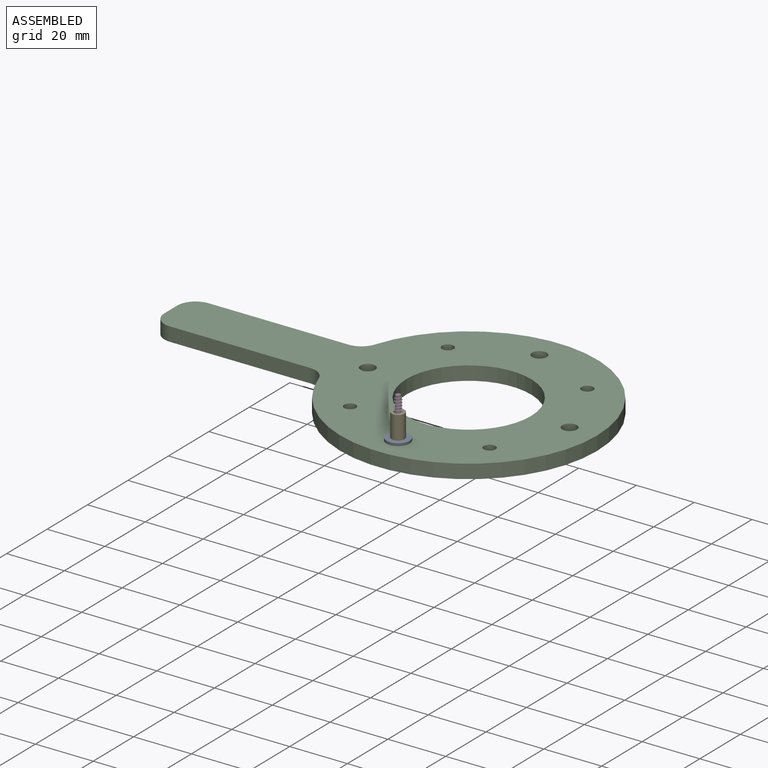
[diagram: assembled view]
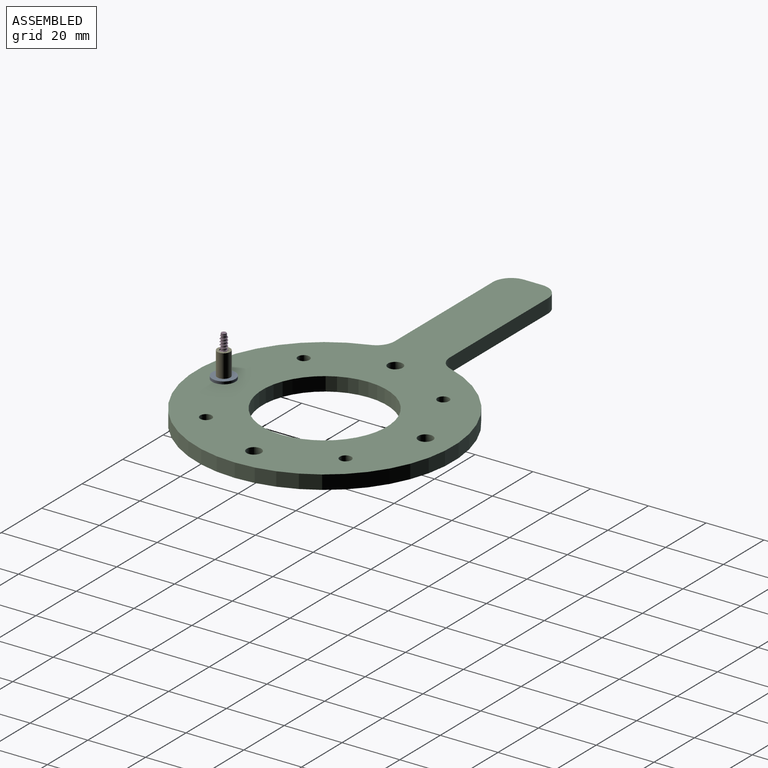
[diagram: assembled view, second angle]
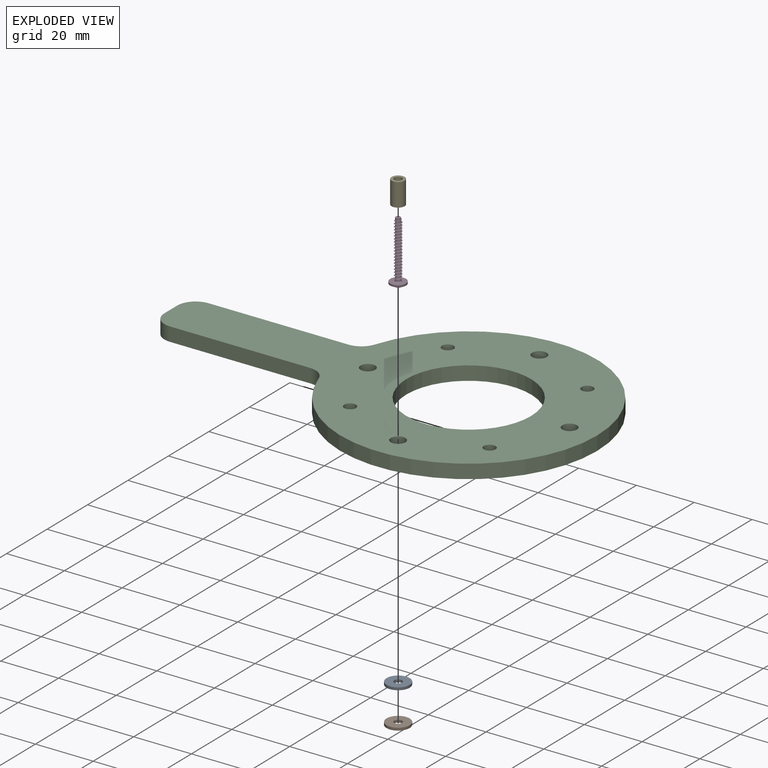
[diagram: exploded view]
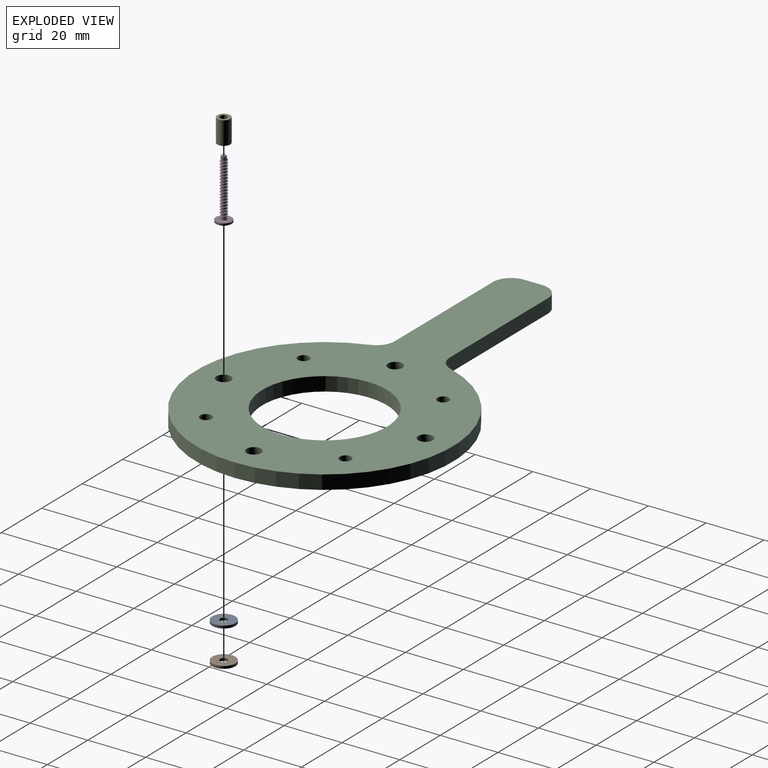
[diagram: exploded view, second angle]
ASSEMBLY  parts=5 mates=4
PART A: 4 faces, bbox 8x8x0.9 mm
  f0: cylinder r=1.35mm len=2.7mm, axis (0,0,-1), area 7.6mm2, adj f2,f3
  f1: cylinder r=4mm len=8mm, axis (0,0,-1), area 22.6mm2, adj f2,f3
  f2: plane 8x8mm, normal (0,0,1), area 44.5mm2, adj f0,f1
  f3: plane 8x8mm, normal (0,0,-1), area 44.5mm2, adj f0,f1
PART B: same geometry as A
PART C: 19 faces, bbox 147.6x88.9x4.8 mm
  f0: cylinder r=6.35mm len=6.03mm, axis (0,0,1), area 38.4mm2, adj f1,f7,f9,f10
  f1: cylinder r=44.45mm len=88.9mm, axis (0,0,1), area 1211.5mm2, adj f0,f2,f9,f10
  f2: cylinder r=6.35mm len=6.03mm, axis (0,0,1), area 38.4mm2, adj f1,f3,f9,f10
  f3: plane 48.52x4.83mm, normal (0,1,0), area 234.1mm2, adj f2,f4,f9,f10
  f4: cylinder r=6.35mm len=6.35mm, axis (0,0,1), area 48.1mm2, adj f3,f5,f9,f10
  f5: plane 6.35x4.83mm, normal (-1,0,0), area 30.6mm2, adj f4,f6,f9,f10
  f6: cylinder r=6.35mm len=6.35mm, axis (0,0,1), area 48.1mm2, adj f5,f7,f9,f10
  f7: plane 48.52x4.83mm, normal (0,-1,0), area 234.1mm2, adj f0,f6,f9,f10
  f8: cylinder r=21.59mm len=43.18mm, axis (0,0,1), area 654.7mm2, adj f9,f10
  f9: plane 147.57x88.9mm, normal (0,0,-1), area 5726mm2, adj f0,f1,f2,f3,f4,f5,f6,f7
  f10: plane 147.57x88.9mm, normal (0,0,1), area 5726mm2, adj f0,f1,f2,f3,f4,f5,f6,f7
  f11: cylinder r=2.54mm len=5.08mm, axis (0,0,1), area 77mm2, adj f9,f10
  f12: cylinder r=2.54mm len=5.08mm, axis (0,0,1), area 77mm2, adj f9,f10
  f13: cylinder r=2.54mm len=5.08mm, axis (0,0,1), area 77mm2, adj f9,f10
  f14: cylinder r=2.54mm len=5.08mm, axis (0,0,1), area 77mm2, adj f9,f10
  f15: cylinder r=2.02mm len=4.83mm, axis (0,0,1), area 61.2mm2, adj f9,f10
  f16: cylinder r=2.02mm len=4.83mm, axis (0,0,1), area 61.2mm2, adj f9,f10
  f17: cylinder r=2.02mm len=4.83mm, axis (0,0,1), area 61.2mm2, adj f9,f10
  f18: cylinder r=2.02mm len=4.83mm, axis (0,0,1), area 61.2mm2, adj f9,f10
PART D: 149 faces, bbox 6x22.4x6 mm
  f0: torus R=2.73mm, axis (0,0.38,-0.92), area 0mm2, adj f7,f38,f119,f121
  f1: torus R=2.73mm, axis (0.92,0.38,0), area 0mm2, adj f7,f53,f118,f120
  f2: sphere r=0.02mm, area 0mm2, adj f72,f105,f108
  f3: sphere r=0.02mm, area 0mm2, adj f71,f102,f105
  f4: sphere r=0.02mm, area 0mm2, adj f67,f87,f90
  f5: sphere r=0.02mm, area 0mm2, adj f66,f84,f87
  f6: cone r=2.75mm half-angle=70deg, axis (0,1,0), area 0.4mm2, adj f75,f76,f77,f78,f80,f81,f82,f84
  f7: sphere r=2.75mm, area 17.2mm2, adj f0,f1,f8,f112,f113,f116,f117,f118
  f8: torus R=2.22mm, axis (0,-1,0), area 0.5mm2, adj f7,f34
  f9: torus R=2.71mm, axis (0,-1,0), area 1mm2, adj f17,f34
  f10: sphere r=5mm, area 2mm2, adj f29
  f11: cone r=0.96mm half-angle=75deg, axis (0,1,0), area 0.1mm2, adj f14,f26,f31
  f12: torus R=2.71mm, axis (0,1,0), area 1mm2, adj f17,f28
  f13: torus R=1.36mm, axis (0,1,0), area 4.4mm2, adj f15,f28
  f14: cone r=0.86mm half-angle=15deg, axis (0,1,0), area 1.4mm2, adj f11,f15,f16,f23,f24,f25,f26,f31
  f15: cylinder r=0.96mm len=1.93mm, axis (0,1,0), area 1.3mm2, adj f13,f14,f24,f30,f31
  f16: cylinder r=0.86mm len=18.99mm, axis (0,1,0), area 19.2mm2, adj f14,f19,f20,f23,f25,f32,f33
  f17: cylinder r=2.75mm len=5.5mm, axis (0,1,0), area 10.8mm2, adj f9,f12
  f18: bspline ~1.88x1.84mm, area 2mm2, adj f19,f22,f23,f29,f33
  f19: extruded ~1.5x0.73mm, area 0.4mm2, adj f16,f18,f29,f33
  f20: bspline ~2.37x2.24mm, area 1.5mm2, adj f16,f21,f24,f32
  f21: bspline ~2.37x2.24mm, area 0.1mm2, adj f20,f22,f27,f33
  f22: bspline ~2.37x2.24mm, area 1.3mm2, adj f18,f21,f23,f26,f33
  f23: bspline ~19.23x1.93mm, area 55.3mm2, adj f14,f16,f18,f22,f26
  f24: bspline ~18x2.51mm, area 27.7mm2, adj f14,f15,f20,f25,f27,f30
  f25: bspline ~17.88x2.12mm, area 27.3mm2, adj f14,f16,f24,f32
  f26: bspline ~18.04x2.51mm, area 40.9mm2, adj f11,f14,f22,f23,f27
  f27: bspline ~17.96x2.51mm, area 1.2mm2, adj f21,f24,f26,f31
  f28: plane 5.43x5.43mm, normal (0,-1,0), area 17.3mm2, adj f12,f13
  f29: plane 1.72x1.72mm, normal (0,-1,0), area 0.2mm2, adj f10,f18,f19,f33
  f30: cone r=0.77mm half-angle=75deg, axis (0,-1,0), area 0.1mm2, adj f15,f24,f31
  f31: cylinder r=0.96mm len=1mm, axis (0,-1,0), area 0mm2, adj f11,f14,f15,f27,f30
  f32: bspline ~1.98x1.86mm, area 0.5mm2, adj f16,f20,f25
  f33: cone r=1.09mm half-angle=45deg, axis (0,1,0), area 0mm2, adj f16,f18,f19,f21,f22,f29
  f34: plane 5.43x5.43mm, normal (0,1,0), area 7.6mm2, adj f8,f9
  f35: plane 1.31x0.29mm, normal (0.38,0.09,-0.92), area 0.3mm2, adj f58,f59,f91,f112
  f36: plane 1.31x0.29mm, normal (0.92,0.09,-0.38), area 0.3mm2, adj f59,f60,f88,f113
  f37: plane 1.21x0.47mm, normal (1,0.09,0), area 0.3mm2, adj f60,f61,f85,f117
  f38: plane 1.08x0.45mm, normal (0,0.38,-0.92), area 0.2mm2, adj f0,f61,f62,f81
  f39: plane 1.21x0.47mm, normal (-1,0.09,0), area 0.3mm2, adj f62,f63,f77,f123
  f40: plane 1.31x0.29mm, normal (-0.92,0.09,-0.38), area 0.3mm2, adj f63,f64,f76,f127
  f41: plane 1.31x0.29mm, normal (-0.38,0.09,-0.92), area 0.3mm2, adj f64,f65,f80,f131
  f42: plane 1.21x0.47mm, normal (0,0.09,-1), area 0.3mm2, adj f65,f66,f84,f135
  f43: plane 1.08x0.45mm, normal (-0.92,0.38,0), area 0.2mm2, adj f66,f67,f87,f139
  f44: plane 1.21x0.47mm, normal (0,0.09,1), area 0.3mm2, adj f67,f68,f90,f143
  f45: plane 1.31x0.29mm, normal (-0.38,0.09,0.92), area 0.3mm2, adj f68,f69,f94,f147
  f46: plane 1.31x0.29mm, normal (-0.92,0.09,0.38), area 0.3mm2, adj f69,f70,f98,f146
  f47: plane 1.21x0.47mm, normal (-1,0.09,0), area 0.3mm2, adj f70,f71,f102,f142
  f48: plane 1.08x0.45mm, normal (0,0.38,0.92), area 0.2mm2, adj f71,f72,f105,f138
  f49: plane 1.21x0.47mm, normal (1,0.09,0), area 0.3mm2, adj f72,f73,f108,f134
  f50: plane 1.31x0.29mm, normal (0.92,0.09,0.38), area 0.3mm2, adj f73,f74,f109,f130
  f51: plane 1.31x0.29mm, normal (0.38,0.09,0.92), area 0.3mm2, adj f55,f74,f106,f126
  f52: plane 1.21x0.47mm, normal (0,0.09,1), area 0.3mm2, adj f55,f56,f103,f122
  f53: plane 1.08x0.45mm, normal (0.92,0.38,0), area 0.2mm2, adj f1,f56,f57,f99
  f54: plane 1.21x0.47mm, normal (0,0.09,-1), area 0.3mm2, adj f57,f58,f95,f116
  f55: cylinder r=0.02mm len=1.21mm, axis (-0.02,1,-0.09), area 0mm2, adj f51,f52,f104,f124
  f56: cylinder r=0.02mm len=1.08mm, axis (0.38,-0.92,0.08), area 0mm2, adj f52,f53,f101,f120
  f57: cylinder r=0.02mm len=1.08mm, axis (0.38,-0.92,-0.08), area 0mm2, adj f53,f54,f97,f118
  f58: cylinder r=0.02mm len=1.21mm, axis (-0.02,1,0.09), area 0mm2, adj f35,f54,f93,f114
  f59: cylinder r=0.02mm len=1.31mm, axis (-0.07,1,0.07), area 0mm2, adj f35,f36,f89,f111
  f60: cylinder r=0.02mm len=1.21mm, axis (-0.09,1,0.02), area 0mm2, adj f36,f37,f86,f115
  f61: cylinder r=0.02mm len=1.08mm, axis (0.08,-0.92,-0.38), area 0mm2, adj f37,f38,f83,f119
  f62: cylinder r=0.02mm len=1.08mm, axis (-0.08,-0.92,-0.38), area 0mm2, adj f38,f39,f79,f121
  f63: cylinder r=0.02mm len=1.21mm, axis (0.09,1,0.02), area 0mm2, adj f39,f40,f75,f125
  f64: cylinder r=0.02mm len=1.31mm, axis (0.07,1,0.07), area 0mm2, adj f40,f41,f78,f129
  f65: cylinder r=0.02mm len=1.21mm, axis (0.02,1,0.09), area 0mm2, adj f41,f42,f82,f133
  f66: cylinder r=0.02mm len=1.08mm, axis (-0.38,-0.92,-0.08), area 0mm2, adj f5,f42,f43,f137
  f67: cylinder r=0.02mm len=1.08mm, axis (-0.38,-0.92,0.08), area 0mm2, adj f4,f43,f44,f141
  f68: cylinder r=0.02mm len=1.21mm, axis (0.02,1,-0.09), area 0mm2, adj f44,f45,f92,f145
  f69: cylinder r=0.02mm len=1.31mm, axis (0.07,1,-0.07), area 0mm2, adj f45,f46,f96,f148
  f70: cylinder r=0.02mm len=1.21mm, axis (0.09,1,-0.02), area 0mm2, adj f46,f47,f100,f144
  f71: cylinder r=0.02mm len=1.08mm, axis (-0.08,-0.92,0.38), area 0mm2, adj f3,f47,f48,f140
  f72: cylinder r=0.02mm len=1.08mm, axis (0.08,-0.92,0.38), area 0mm2, adj f2,f48,f49,f136
  f73: cylinder r=0.02mm len=1.21mm, axis (-0.09,1,-0.02), area 0mm2, adj f49,f50,f110,f132
  f74: cylinder r=0.02mm len=1.31mm, axis (-0.07,1,-0.07), area 0mm2, adj f50,f51,f107,f128
  f75: cylinder r=0.02mm len=0.02mm, axis (-0.2,0.29,0.94), area 0mm2, adj f6,f63,f76,f77
  f76: bspline ~0.27x0.12mm, area 0mm2, adj f6,f40,f75,f78
  f77: cylinder r=0.02mm len=0.03mm, axis (-0.03,-0.34,-0.94), area 0mm2, adj f6,f39,f75,f79
  f78: bspline ~0.02x0.02mm, area 0mm2, adj f6,f64,f76,f80
  f79: sphere r=0.02mm, area 0mm2, adj f62,f77,f81
  f80: bspline ~0.27x0.12mm, area 0mm2, adj f6,f41,f78,f82
  f81: bspline ~0.12x0.01mm, area 0mm2, adj f6,f38,f79,f83
  f82: cylinder r=0.02mm len=0.02mm, axis (-0.92,-0.37,0.11), area 0mm2, adj f6,f65,f80,f84
  f83: sphere r=0.02mm, area 0mm2, adj f61,f81,f85
  f84: cylinder r=0.02mm len=0.03mm, axis (0.94,0.34,0.03), area 0mm2, adj f5,f6,f42,f82
  f85: cylinder r=0.02mm len=0.03mm, axis (-0.03,0.34,0.94), area 0mm2, adj f6,f37,f83,f86
  f86: cylinder r=0.02mm len=0.02mm, axis (-0.11,-0.37,-0.92), area 0mm2, adj f6,f60,f85,f88
  f87: bspline ~0.12x0.01mm, area 0mm2, adj f4,f5,f6,f43
  f88: bspline ~0.27x0.12mm, area 0mm2, adj f6,f36,f86,f89
  f89: bspline ~0.02x0.02mm, area 0mm2, adj f6,f59,f88,f91
  f90: cylinder r=0.02mm len=0.03mm, axis (-0.94,-0.34,0.03), area 0mm2, adj f4,f6,f44,f92
  f91: bspline ~0.27x0.12mm, area 0mm2, adj f6,f35,f89,f93
  f92: cylinder r=0.02mm len=0.02mm, axis (0.94,0.29,0.2), area 0mm2, adj f6,f68,f90,f94
  f93: cylinder r=0.02mm len=0.02mm, axis (-0.94,0.29,-0.2), area 0mm2, adj f6,f58,f91,f95
  f94: bspline ~0.27x0.12mm, area 0mm2, adj f6,f45,f92,f96
  f95: cylinder r=0.02mm len=0.03mm, axis (0.94,-0.34,-0.03), area 0mm2, adj f6,f54,f93,f97
  f96: bspline ~0.02x0.02mm, area 0mm2, adj f6,f69,f94,f98
  f97: sphere r=0.02mm, area 0mm2, adj f57,f95,f99
  f98: bspline ~0.27x0.12mm, area 0mm2, adj f6,f46,f96,f100
  f99: bspline ~0.12x0.01mm, area 0mm2, adj f6,f53,f97,f101
  f100: cylinder r=0.02mm len=0.02mm, axis (0.11,-0.37,0.92), area 0mm2, adj f6,f70,f98,f102
  f101: sphere r=0.02mm, area 0mm2, adj f56,f99,f103
  f102: cylinder r=0.02mm len=0.03mm, axis (0.03,0.34,-0.94), area 0mm2, adj f3,f6,f47,f100
  f103: cylinder r=0.02mm len=0.03mm, axis (-0.94,0.34,-0.03), area 0mm2, adj f6,f52,f101,f104
  f104: cylinder r=0.02mm len=0.02mm, axis (0.92,-0.37,-0.11), area 0mm2, adj f6,f55,f103,f106
  f105: bspline ~0.12x0.01mm, area 0mm2, adj f2,f3,f6,f48
  f106: bspline ~0.27x0.12mm, area 0mm2, adj f6,f51,f104,f107
  f107: bspline ~0.02x0.02mm, area 0mm2, adj f6,f74,f106,f109
  f108: cylinder r=0.02mm len=0.03mm, axis (0.03,-0.34,0.94), area 0mm2, adj f2,f6,f49,f110
  f109: bspline ~0.27x0.12mm, area 0mm2, adj f6,f50,f107,f110
  f110: cylinder r=0.02mm len=0.02mm, axis (0.2,0.29,-0.94), area 0mm2, adj f6,f73,f108,f109
  f111: sphere r=0.02mm, area 0mm2, adj f59,f112,f113
  f112: torus R=2.73mm, axis (0.38,0.09,-0.92), area 0mm2, adj f7,f35,f111,f114
  f113: torus R=2.73mm, axis (0.92,0.09,-0.38), area 0mm2, adj f7,f36,f111,f115
  f114: sphere r=0.02mm, area 0mm2, adj f58,f112,f116
  f115: sphere r=0.02mm, area 0mm2, adj f60,f113,f117
  f116: torus R=2.73mm, axis (0,0.09,-1), area 0mm2, adj f7,f54,f114,f118
  f117: torus R=2.73mm, axis (1,0.09,0), area 0mm2, adj f7,f37,f115,f119
  f118: bspline ~0.04x0.04mm, area 0mm2, adj f1,f7,f57,f116
  f119: bspline ~0.04x0.04mm, area 0mm2, adj f0,f7,f61,f117
  f120: bspline ~0.04x0.04mm, area 0mm2, adj f1,f7,f56,f122
  f121: bspline ~0.04x0.04mm, area 0mm2, adj f0,f7,f62,f123
  f122: torus R=2.73mm, axis (0,0.09,1), area 0mm2, adj f7,f52,f120,f124
  f123: torus R=2.73mm, axis (-1,0.09,0), area 0mm2, adj f7,f39,f121,f125
  f124: sphere r=0.02mm, area 0mm2, adj f55,f122,f126
  f125: sphere r=0.02mm, area 0mm2, adj f63,f123,f127
  f126: torus R=2.73mm, axis (0.38,0.09,0.92), area 0mm2, adj f7,f51,f124,f128
  f127: torus R=2.73mm, axis (-0.92,0.09,-0.38), area 0mm2, adj f7,f40,f125,f129
  f128: sphere r=0.02mm, area 0mm2, adj f74,f126,f130
  f129: sphere r=0.02mm, area 0mm2, adj f64,f127,f131
  f130: torus R=2.73mm, axis (0.92,0.09,0.38), area 0mm2, adj f7,f50,f128,f132
  f131: torus R=2.73mm, axis (-0.38,0.09,-0.92), area 0mm2, adj f7,f41,f129,f133
  f132: sphere r=0.02mm, area 0mm2, adj f73,f130,f134
  f133: sphere r=0.02mm, area 0mm2, adj f65,f131,f135
  f134: torus R=2.73mm, axis (1,0.09,0), area 0mm2, adj f7,f49,f132,f136
  f135: torus R=2.73mm, axis (0,0.09,-1), area 0mm2, adj f7,f42,f133,f137
  f136: bspline ~0.04x0.04mm, area 0mm2, adj f7,f72,f134,f138
  f137: bspline ~0.04x0.04mm, area 0mm2, adj f7,f66,f135,f139
  f138: torus R=2.73mm, axis (0,0.38,0.92), area 0mm2, adj f7,f48,f136,f140
  f139: torus R=2.73mm, axis (-0.92,0.38,0), area 0mm2, adj f7,f43,f137,f141
  f140: bspline ~0.04x0.04mm, area 0mm2, adj f7,f71,f138,f142
  f141: bspline ~0.04x0.04mm, area 0mm2, adj f7,f67,f139,f143
  f142: torus R=2.73mm, axis (-1,0.09,0), area 0mm2, adj f7,f47,f140,f144
  f143: torus R=2.73mm, axis (0,0.09,1), area 0mm2, adj f7,f44,f141,f145
  f144: sphere r=0.02mm, area 0mm2, adj f70,f142,f146
  f145: sphere r=0.02mm, area 0mm2, adj f68,f143,f147
  f146: torus R=2.73mm, axis (-0.92,0.09,0.38), area 0mm2, adj f7,f46,f144,f148
  f147: torus R=2.73mm, axis (-0.38,0.09,0.92), area 0mm2, adj f7,f45,f145,f148
  f148: sphere r=0.02mm, area 0mm2, adj f69,f146,f147
PART E: 4 faces, bbox 4.5x4.5x8 mm
  f0: cylinder r=1.35mm len=8mm, axis (0,0,-1), area 67.9mm2, adj f2,f3
  f1: cylinder r=2.25mm len=8mm, axis (0,0,-1), area 113.1mm2, adj f2,f3
  f2: plane 4.5x4.5mm, normal (0,0,1), area 10.2mm2, adj f0,f1
  f3: plane 4.5x4.5mm, normal (0,0,-1), area 10.2mm2, adj f0,f1
PLACE A t=(0,-34.93,0)mm
PLACE B t=(0,-34.93,-5.73)mm
PLACE C at identity
PLACE D rot(axis=(-1,0,0),90deg) t=(0,-34.93,4.27)mm
PLACE E t=(0,-34.93,4.9)mm
MATE cylindrical E.f0 <-> A.f0  axis (0,0,-1) through (0,-34.93,0.9)mm
MATE cylindrical A.f0 <-> C.f13  axis (0,0,-1) through (0,-34.93,0)mm
MATE cylindrical D.f12 <-> B.f0  axis (0,0,1) through (0,-34.93,-5.73)mm
MATE cylindrical B.f0 <-> C.f13  axis (0,0,-1) through (0,-34.93,-4.83)mm
